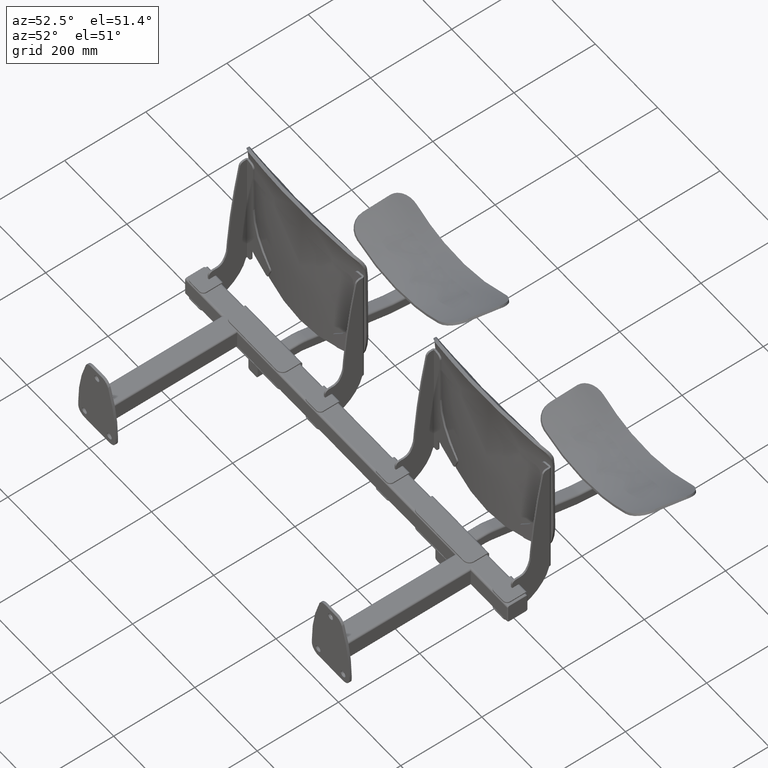
[diagram: clean part render]
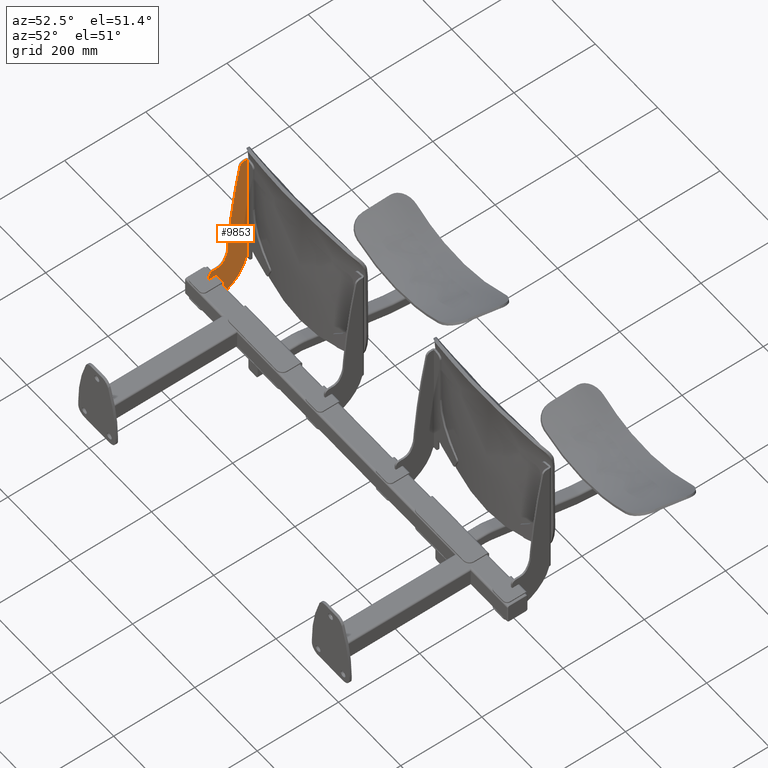
[diagram: same view with one face highlighted and labeled with its STEP entity id]
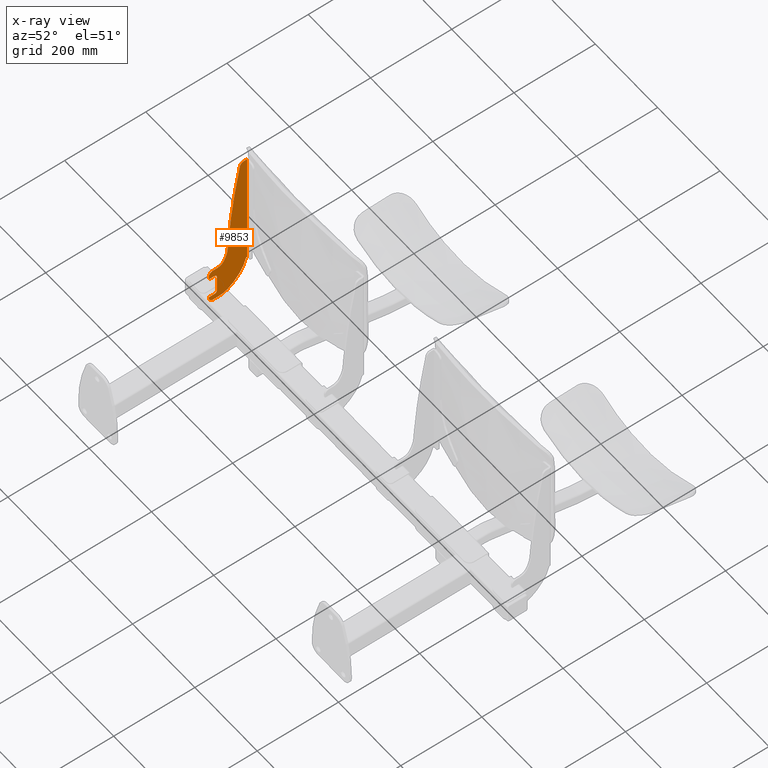
[diagram: x-ray of the same camera — body ghosted, the highlighted face saturated]
A machine part, auxiliary view. The second image highlights one B-rep face of the part: STEP entity #9853.
The next image is the same camera in x-ray: the body ghosted, the highlighted face saturated — about 0% of this face is hidden behind the body in this view.
In plain terms, the highlighted planar face has unit normal (-1, 0, 0).
Its self-contained STEP definition (entity closure, byte-faithful):
#3465 = AXIS2_PLACEMENT_3D ( 'NONE', #5327, #5332, #5333 ) ;
#4145 = CARTESIAN_POINT ( 'NONE',  ( -184.5000000000000000, -29.99960903027743000, 85.00000000000001400 ) ) ;
#4146 = CARTESIAN_POINT ( 'NONE',  ( -184.5000000000000000, 0.4346393196845710300, 321.8704615215368700 ) ) ;
#4148 = CARTESIAN_POINT ( 'NONE',  ( -184.5000000000000000, -28.67664571090134000, 104.9645770423939800 ) ) ;
#5325 = PLANE ( 'NONE',  #3465 ) ;
#5327 = CARTESIAN_POINT ( 'NONE',  ( -184.5000000000000000, 768.8487700016353300, 42.09000911109884400 ) ) ;
#5332 = DIRECTION ( 'NONE',  ( -1.000000000000000000, 0.0000000000000000000, 0.0000000000000000000 ) ) ;
#5333 = DIRECTION ( 'NONE',  ( 0.0000000000000000000, 0.0000000000000000000, 1.000000000000000000 ) ) ;
#5918 = EDGE_CURVE ( 'NONE', #19436, #19437, #13206, .T. ) ;
#5977 = EDGE_CURVE ( 'NONE', #10260, #10256, #13297, .T. ) ;
#5978 = EDGE_CURVE ( 'NONE', #10256, #10234, #13294, .T. ) ;
#5979 = EDGE_CURVE ( 'NONE', #10234, #10247, #13300, .T. ) ;
#5980 = EDGE_CURVE ( 'NONE', #10247, #10236, #13301, .T. ) ;
#5981 = EDGE_CURVE ( 'NONE', #10236, #7365, #13303, .T. ) ;
#5982 = EDGE_CURVE ( 'NONE', #7365, #10245, #13304, .T. ) ;
#5983 = EDGE_CURVE ( 'NONE', #10245, #10241, #13306, .T. ) ;
#5984 = EDGE_CURVE ( 'NONE', #10241, #10201, #13308, .T. ) ;
#5985 = EDGE_CURVE ( 'NONE', #10201, #10231, #13309, .T. ) ;
#5986 = EDGE_CURVE ( 'NONE', #10231, #10243, #13311, .T. ) ;
#5987 = EDGE_CURVE ( 'NONE', #10203, #10243, #13312, .T. ) ;
#5988 = EDGE_CURVE ( 'NONE', #10203, #10205, #13298, .T. ) ;
#5989 = EDGE_CURVE ( 'NONE', #10205, #10257, #13315, .T. ) ;
#6172 = CARTESIAN_POINT ( 'NONE',  ( -184.5000000000000000, -76.00000000000001400, -30.49999999999998900 ) ) ;
#6174 = CARTESIAN_POINT ( 'NONE',  ( -184.5000000000000000, -56.52131254699094100, 45.00000000000002100 ) ) ;
#6175 = CARTESIAN_POINT ( 'NONE',  ( -184.5000000000000000, -76.00000000000001400, 35.00000000000000700 ) ) ;
#6178 = CARTESIAN_POINT ( 'NONE',  ( -184.5000000000000000, -66.00000000000000000, 45.00000000000001400 ) ) ;
#6186 = CARTESIAN_POINT ( 'NONE',  ( -184.5000000000000000, -39.46143375604454900, 54.56158366234524200 ) ) ;
#7365 = VERTEX_POINT ( 'NONE', #6172 ) ;
#7367 = VERTEX_POINT ( 'NONE', #6174 ) ;
#7368 = VERTEX_POINT ( 'NONE', #6175 ) ;
#7371 = VERTEX_POINT ( 'NONE', #6178 ) ;
#7379 = VERTEX_POINT ( 'NONE', #6186 ) ;
#7913 = AXIS2_PLACEMENT_3D ( 'NONE', #10298, #10299, #10300 ) ;
#7962 = AXIS2_PLACEMENT_3D ( 'NONE', #12273, #12274, #12275 ) ;
#7963 = AXIS2_PLACEMENT_3D ( 'NONE', #12278, #12279, #12280 ) ;
#7964 = AXIS2_PLACEMENT_3D ( 'NONE', #12283, #12284, #12285 ) ;
#7965 = AXIS2_PLACEMENT_3D ( 'NONE', #12288, #12289, #12290 ) ;
#7966 = AXIS2_PLACEMENT_3D ( 'NONE', #12293, #12294, #12295 ) ;
#8781 = EDGE_CURVE ( 'NONE', #10266, #10257, #13591, .T. ) ;
#8782 = EDGE_CURVE ( 'NONE', #10266, #19438, #13592, .T. ) ;
#8783 = EDGE_CURVE ( 'NONE', #19438, #19437, #13594, .T. ) ;
#8784 = EDGE_CURVE ( 'NONE', #19436, #7379, #13595, .T. ) ;
#8785 = EDGE_CURVE ( 'NONE', #7379, #7367, #13596, .T. ) ;
#8786 = EDGE_CURVE ( 'NONE', #7367, #7371, #13597, .T. ) ;
#8787 = EDGE_CURVE ( 'NONE', #7371, #7368, #13598, .T. ) ;
#8788 = EDGE_CURVE ( 'NONE', #7368, #10260, #13600, .T. ) ;
#9185 = ORIENTED_EDGE ( 'NONE', *, *, #8781, .F. ) ;
#9186 = ORIENTED_EDGE ( 'NONE', *, *, #8782, .T. ) ;
#9187 = ORIENTED_EDGE ( 'NONE', *, *, #8783, .T. ) ;
#9188 = ORIENTED_EDGE ( 'NONE', *, *, #5918, .F. ) ;
#9189 = ORIENTED_EDGE ( 'NONE', *, *, #8784, .T. ) ;
#9190 = ORIENTED_EDGE ( 'NONE', *, *, #8785, .T. ) ;
#9191 = ORIENTED_EDGE ( 'NONE', *, *, #8786, .T. ) ;
#9192 = ORIENTED_EDGE ( 'NONE', *, *, #8787, .T. ) ;
#9193 = ORIENTED_EDGE ( 'NONE', *, *, #8788, .T. ) ;
#9194 = ORIENTED_EDGE ( 'NONE', *, *, #5977, .T. ) ;
#9195 = ORIENTED_EDGE ( 'NONE', *, *, #5978, .T. ) ;
#9196 = ORIENTED_EDGE ( 'NONE', *, *, #5979, .T. ) ;
#9197 = ORIENTED_EDGE ( 'NONE', *, *, #5980, .T. ) ;
#9198 = ORIENTED_EDGE ( 'NONE', *, *, #5981, .T. ) ;
#9199 = ORIENTED_EDGE ( 'NONE', *, *, #5982, .T. ) ;
#9200 = ORIENTED_EDGE ( 'NONE', *, *, #5983, .T. ) ;
#9201 = ORIENTED_EDGE ( 'NONE', *, *, #5984, .T. ) ;
#9202 = ORIENTED_EDGE ( 'NONE', *, *, #5985, .T. ) ;
#9203 = ORIENTED_EDGE ( 'NONE', *, *, #5986, .T. ) ;
#9204 = ORIENTED_EDGE ( 'NONE', *, *, #5987, .F. ) ;
#9310 = CARTESIAN_POINT ( 'NONE',  ( -184.5000000000000000, -50.76586166187402700, -45.49999999999999300 ) ) ;
#9311 = CARTESIAN_POINT ( 'NONE',  ( -184.5000000000000000, 17.61484380720979100, 24.00000000000002100 ) ) ;
#9316 = CARTESIAN_POINT ( 'NONE',  ( -184.5000000000000000, 17.61484380720990100, 24.28409515809885400 ) ) ;
#9339 = CARTESIAN_POINT ( 'NONE',  ( -184.5000000000000000, -29.85772430000088900, -39.60058345625546400 ) ) ;
#9342 = CARTESIAN_POINT ( 'NONE',  ( -184.5000000000000000, -56.99999999999999300, 20.50000000000000400 ) ) ;
#9344 = CARTESIAN_POINT ( 'NONE',  ( -184.5000000000000000, -62.00000000000000000, -30.49999999999999300 ) ) ;
#9349 = CARTESIAN_POINT ( 'NONE',  ( -184.5000000000000000, -66.00000000000000000, -45.49999999999999300 ) ) ;
#9351 = CARTESIAN_POINT ( 'NONE',  ( -184.5000000000000000, 15.49999999999968000, 24.00000000000002100 ) ) ;
#9353 = CARTESIAN_POINT ( 'NONE',  ( -184.5000000000000000, -76.00000000000001400, -35.49999999999999300 ) ) ;
#9355 = CARTESIAN_POINT ( 'NONE',  ( -184.5000000000000000, -56.99999999999999300, -25.49999999999999300 ) ) ;
#9364 = CARTESIAN_POINT ( 'NONE',  ( -184.5000000000000000, -62.00000000000000000, 25.50000000000000400 ) ) ;
#9365 = CARTESIAN_POINT ( 'NONE',  ( -184.4999999999999400, 17.61484380720984400, 330.0000000000000000 ) ) ;
#9368 = CARTESIAN_POINT ( 'NONE',  ( -184.5000000000000000, -76.00000000000001400, 25.50000000000000700 ) ) ;
#9374 = CARTESIAN_POINT ( 'NONE',  ( -184.4999999999999400, 10.25815059093826400, 330.0000000000000000 ) ) ;
#9853 = ADVANCED_FACE ( 'NONE', ( #19275 ), #5325, .F. ) ;
#10201 = VERTEX_POINT ( 'NONE', #9310 ) ;
#10203 = VERTEX_POINT ( 'NONE', #9311 ) ;
#10205 = VERTEX_POINT ( 'NONE', #9316 ) ;
#10231 = VERTEX_POINT ( 'NONE', #9339 ) ;
#10234 = VERTEX_POINT ( 'NONE', #9342 ) ;
#10236 = VERTEX_POINT ( 'NONE', #9344 ) ;
#10241 = VERTEX_POINT ( 'NONE', #9349 ) ;
#10243 = VERTEX_POINT ( 'NONE', #9351 ) ;
#10245 = VERTEX_POINT ( 'NONE', #9353 ) ;
#10247 = VERTEX_POINT ( 'NONE', #9355 ) ;
#10256 = VERTEX_POINT ( 'NONE', #9364 ) ;
#10257 = VERTEX_POINT ( 'NONE', #9365 ) ;
#10260 = VERTEX_POINT ( 'NONE', #9368 ) ;
#10266 = VERTEX_POINT ( 'NONE', #9374 ) ;
#10298 = CARTESIAN_POINT ( 'NONE',  ( -184.5000000000000000, 768.8487700016353300, 42.09000911109884400 ) ) ;
#10299 = DIRECTION ( 'NONE',  ( -1.000000000000000000, -0.0000000000000000000, -0.0000000000000000000 ) ) ;
#10300 = DIRECTION ( 'NONE',  ( 0.0000000000000000000, 0.0000000000000000000, 1.000000000000000000 ) ) ;
#11800 = CARTESIAN_POINT ( 'NONE',  ( -184.4999999999999400, 1.999999999999890800, 330.0000000000000000 ) ) ;
#11801 = DIRECTION ( 'NONE',  ( 0.0000000000000000000, 1.000000000000000000, 0.0000000000000000000 ) ) ;
#11808 = CARTESIAN_POINT ( 'NONE',  ( -184.5000000000000000, 10.25815059093826400, 320.0000000000000000 ) ) ;
#11809 = DIRECTION ( 'NONE',  ( 1.000000000000000000, -0.0000000000000000000, -0.0000000000000000000 ) ) ;
#11810 = DIRECTION ( 'NONE',  ( 0.0000000000000000000, 0.0000000000000000000, 1.000000000000000000 ) ) ;
#11811 = CARTESIAN_POINT ( 'NONE',  ( -184.5000000000000000, 1965.136893570438800, -52.22184278584374100 ) ) ;
#11812 = DIRECTION ( 'NONE',  ( 1.000000000000000000, -0.0000000000000000000, -0.0000000000000000000 ) ) ;
#11813 = DIRECTION ( 'NONE',  ( 0.0000000000000000000, 0.0000000000000000000, 1.000000000000000000 ) ) ;
#11814 = CARTESIAN_POINT ( 'NONE',  ( -184.5000000000000000, -76.00000000000001400, 45.00000000000001400 ) ) ;
#11815 = DIRECTION ( 'NONE',  ( 0.0000000000000000000, -1.000000000000000000, -2.359788892426816400E-016 ) ) ;
#11816 = CARTESIAN_POINT ( 'NONE',  ( -184.5000000000000000, -94.90603982662021600, 88.48643675972323300 ) ) ;
#11817 = DIRECTION ( 'NONE',  ( -1.000000000000000000, 0.0000000000000000000, 0.0000000000000000000 ) ) ;
#11818 = DIRECTION ( 'NONE',  ( 0.0000000000000000000, 0.0000000000000000000, 1.000000000000000000 ) ) ;
#11819 = CARTESIAN_POINT ( 'NONE',  ( -184.5000000000000000, -76.00000000000001400, 25.50000000000000700 ) ) ;
#11820 = DIRECTION ( 'NONE',  ( 0.0000000000000000000, 0.0000000000000000000, -1.000000000000000000 ) ) ;
#11821 = CARTESIAN_POINT ( 'NONE',  ( -184.5000000000000000, -56.52131254699094100, 65.00000000000002800 ) ) ;
#11822 = DIRECTION ( 'NONE',  ( -1.000000000000000000, 0.0000000000000000000, 0.0000000000000000000 ) ) ;
#11823 = DIRECTION ( 'NONE',  ( 0.0000000000000000000, 0.0000000000000000000, 1.000000000000000000 ) ) ;
#11826 = CARTESIAN_POINT ( 'NONE',  ( -184.5000000000000000, -66.00000000000000000, 35.00000000000000700 ) ) ;
#11827 = DIRECTION ( 'NONE',  ( 1.000000000000000000, -0.0000000000000000000, -0.0000000000000000000 ) ) ;
#11828 = DIRECTION ( 'NONE',  ( 0.0000000000000000000, 0.0000000000000000000, 1.000000000000000000 ) ) ;
#12260 = CARTESIAN_POINT ( 'NONE',  ( -184.5000000000000000, -76.00000000000001400, 25.50000000000000700 ) ) ;
#12261 = DIRECTION ( 'NONE',  ( 0.0000000000000000000, 1.000000000000000000, -1.826024711554535900E-016 ) ) ;
#12266 = DIRECTION ( 'NONE',  ( 0.0000000000000000000, 0.0000000000000000000, -1.000000000000000000 ) ) ;
#12270 = CARTESIAN_POINT ( 'NONE',  ( -184.5000000000000000, -56.99999999999999300, 25.50000000000000400 ) ) ;
#12271 = CARTESIAN_POINT ( 'NONE',  ( -184.5000000000000000, -56.99999999999999300, -30.49999999999999600 ) ) ;
#12272 = DIRECTION ( 'NONE',  ( 0.0000000000000000000, -1.000000000000000000, 3.652049423109068300E-016 ) ) ;
#12273 = CARTESIAN_POINT ( 'NONE',  ( -184.5000000000000000, -62.00000000000000000, 20.50000000000000400 ) ) ;
#12274 = DIRECTION ( 'NONE',  ( -1.000000000000000000, 0.0000000000000000000, 0.0000000000000000000 ) ) ;
#12275 = DIRECTION ( 'NONE',  ( 0.0000000000000000000, 0.0000000000000000000, 1.000000000000000000 ) ) ;
#12276 = CARTESIAN_POINT ( 'NONE',  ( -184.5000000000000000, -76.00000000000001400, -45.49999999999999300 ) ) ;
#12277 = DIRECTION ( 'NONE',  ( 0.0000000000000000000, 1.000000000000000000, 0.0000000000000000000 ) ) ;
#12278 = CARTESIAN_POINT ( 'NONE',  ( -184.5000000000000000, -62.00000000000000000, -25.49999999999999300 ) ) ;
#12279 = DIRECTION ( 'NONE',  ( -1.000000000000000000, 0.0000000000000000000, 0.0000000000000000000 ) ) ;
#12280 = DIRECTION ( 'NONE',  ( 0.0000000000000000000, 0.0000000000000000000, 1.000000000000000000 ) ) ;
#12281 = CARTESIAN_POINT ( 'NONE',  ( -184.5000000000000000, -76.00000000000001400, -30.49999999999998900 ) ) ;
#12282 = DIRECTION ( 'NONE',  ( 0.0000000000000000000, 0.0000000000000000000, -1.000000000000000000 ) ) ;
#12283 = CARTESIAN_POINT ( 'NONE',  ( -184.5000000000000000, -66.00000000000000000, -35.49999999999999300 ) ) ;
#12284 = DIRECTION ( 'NONE',  ( 1.000000000000000000, -0.0000000000000000000, -0.0000000000000000000 ) ) ;
#12285 = DIRECTION ( 'NONE',  ( 0.0000000000000000000, 0.0000000000000000000, 1.000000000000000000 ) ) ;
#12286 = CARTESIAN_POINT ( 'NONE',  ( -184.5000000000000000, -44.99999999999998600, 24.00000000000002100 ) ) ;
#12287 = DIRECTION ( 'NONE',  ( 0.0000000000000000000, -1.000000000000000000, 0.0000000000000000000 ) ) ;
#12288 = CARTESIAN_POINT ( 'NONE',  ( -184.5000000000000000, -50.76586166187402700, -5.499999999999991100 ) ) ;
#12289 = DIRECTION ( 'NONE',  ( 1.000000000000000000, -0.0000000000000000000, -0.0000000000000000000 ) ) ;
#12290 = DIRECTION ( 'NONE',  ( 0.0000000000000000000, 0.0000000000000000000, 1.000000000000000000 ) ) ;
#12292 = CARTESIAN_POINT ( 'NONE',  ( -184.5000000000000000, 17.61484380720990100, 42.09000911109884400 ) ) ;
#12293 = CARTESIAN_POINT ( 'NONE',  ( -184.5000000000000000, -82.12806770468355900, 45.65087518438299700 ) ) ;
#12294 = DIRECTION ( 'NONE',  ( 1.000000000000000000, -0.0000000000000000000, -0.0000000000000000000 ) ) ;
#12295 = DIRECTION ( 'NONE',  ( 0.0000000000000000000, 8.326672684688696700E-016, 1.000000000000000000 ) ) ;
#12297 = DIRECTION ( 'NONE',  ( 0.0000000000000000000, 0.0000000000000000000, 1.000000000000000000 ) ) ;
#12298 = CARTESIAN_POINT ( 'NONE',  ( -184.5000000000000000, 17.61484380720990100, 42.09000911109884400 ) ) ;
#12299 = DIRECTION ( 'NONE',  ( 0.0000000000000000000, 0.0000000000000000000, 1.000000000000000000 ) ) ;
#13206 = CIRCLE ( 'NONE', #7913, 800.0000000000000000 ) ;
#13294 = CIRCLE ( 'NONE', #7962, 5.000000000000000900 ) ;
#13297 = LINE ( 'NONE', #12260, #13299 ) ;
#13298 = LINE ( 'NONE', #12292, #13316 ) ;
#13299 = VECTOR ( 'NONE', #12261, 1000.000000000000000 ) ;
#13300 = LINE ( 'NONE', #12270, #13302 ) ;
#13301 = CIRCLE ( 'NONE', #7963, 5.000000000000000900 ) ;
#13302 = VECTOR ( 'NONE', #12266, 1000.000000000000000 ) ;
#13303 = LINE ( 'NONE', #12271, #13305 ) ;
#13304 = LINE ( 'NONE', #12281, #13307 ) ;
#13305 = VECTOR ( 'NONE', #12272, 1000.000000000000000 ) ;
#13306 = CIRCLE ( 'NONE', #7964, 10.00000000000000200 ) ;
#13307 = VECTOR ( 'NONE', #12282, 1000.000000000000000 ) ;
#13308 = LINE ( 'NONE', #12276, #13310 ) ;
#13309 = CIRCLE ( 'NONE', #7965, 40.00000000000000000 ) ;
#13310 = VECTOR ( 'NONE', #12277, 1000.000000000000000 ) ;
#13311 = CIRCLE ( 'NONE', #7966, 99.99999999999973000 ) ;
#13312 = LINE ( 'NONE', #12286, #13314 ) ;
#13314 = VECTOR ( 'NONE', #12287, 1000.000000000000000 ) ;
#13315 = LINE ( 'NONE', #12298, #13318 ) ;
#13316 = VECTOR ( 'NONE', #12297, 1000.000000000000000 ) ;
#13318 = VECTOR ( 'NONE', #12299, 1000.000000000000000 ) ;
#13591 = LINE ( 'NONE', #11800, #13593 ) ;
#13592 = CIRCLE ( 'NONE', #18345, 10.00000000000000900 ) ;
#13593 = VECTOR ( 'NONE', #11801, 1000.000000000000000 ) ;
#13594 = CIRCLE ( 'NONE', #18346, 2000.000000000000000 ) ;
#13595 = CIRCLE ( 'NONE', #18347, 64.99999999999991500 ) ;
#13596 = CIRCLE ( 'NONE', #18348, 20.00000000000000400 ) ;
#13597 = LINE ( 'NONE', #11814, #13599 ) ;
#13598 = CIRCLE ( 'NONE', #18349, 10.00000000000000200 ) ;
#13599 = VECTOR ( 'NONE', #11815, 1000.000000000000000 ) ;
#13600 = LINE ( 'NONE', #11819, #13602 ) ;
#13602 = VECTOR ( 'NONE', #11820, 1000.000000000000000 ) ;
#17595 = ORIENTED_EDGE ( 'NONE', *, *, #5988, .T. ) ;
#17596 = ORIENTED_EDGE ( 'NONE', *, *, #5989, .T. ) ;
#18345 = AXIS2_PLACEMENT_3D ( 'NONE', #11808, #11809, #11810 ) ;
#18346 = AXIS2_PLACEMENT_3D ( 'NONE', #11811, #11812, #11813 ) ;
#18347 = AXIS2_PLACEMENT_3D ( 'NONE', #11816, #11817, #11818 ) ;
#18348 = AXIS2_PLACEMENT_3D ( 'NONE', #11821, #11822, #11823 ) ;
#18349 = AXIS2_PLACEMENT_3D ( 'NONE', #11826, #11827, #11828 ) ;
#19275 = FACE_OUTER_BOUND ( 'NONE', #19587, .T. ) ;
#19436 = VERTEX_POINT ( 'NONE', #4145 ) ;
#19437 = VERTEX_POINT ( 'NONE', #4148 ) ;
#19438 = VERTEX_POINT ( 'NONE', #4146 ) ;
#19587 = EDGE_LOOP ( 'NONE', ( #9185, #9186, #9187, #9188, #9189, #9190, #9191, #9192, #9193, #9194, #9195, #9196, #9197, #9198, #9199, #9200, #9201, #9202, #9203, #9204, #17595, #17596 ) ) ;